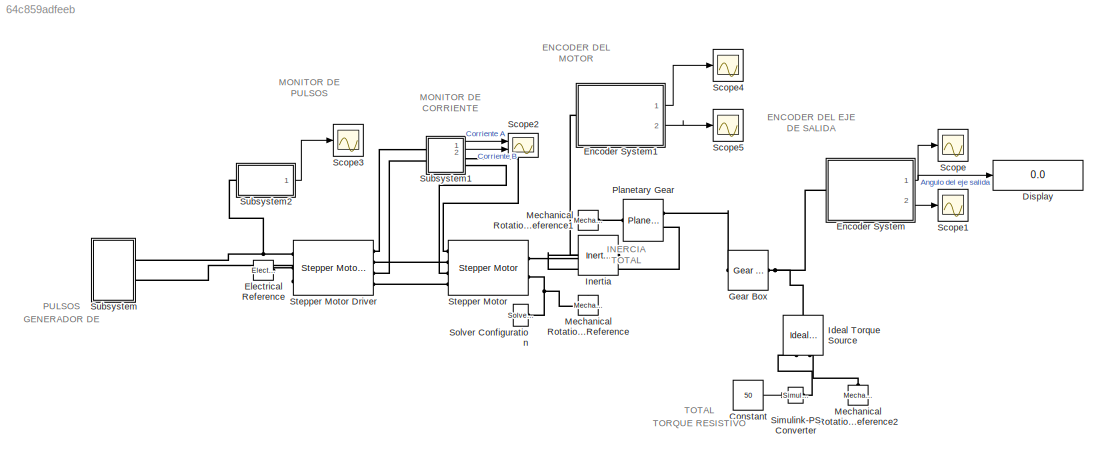
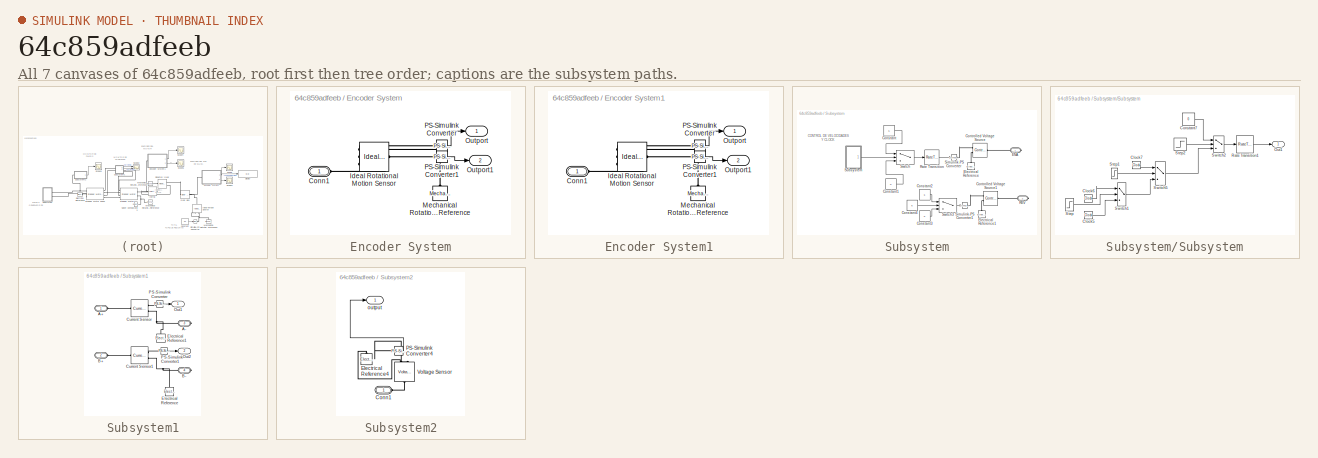
[diagram: thumbnail index - all 7 canvases of the model, root first then tree order]
MODEL slx_64c859adfeeb
KIND model
CONFIG AbsTol = auto
CONFIG EnableMultiTasking = off
CONFIG FixedStep = auto
CONFIG MaxStep = auto
CONFIG MinStep = auto
CONFIG RelTol = 1e-3
CONFIG SampleTimeConstraint = Unconstrained
CONFIG SolverName = VariableStepAuto
CONFIG StartTime = 0.0
CONFIG StopTime = 60
BLOCK [Constant] Constant
  Value = 50
BLOCK [Display] Display
  Decimation = 1
  Ports = [1]
BLOCK [Reference] Electrical Reference  REF=fl_lib/Electrical/Electrical Elements/Electrical Reference
  Ports = [0, 0, 0, 0, 0, 1]
  SourceBlock = fl_lib/Electrical/Electrical Elements/Electrical Reference
  SourceProductBaseCode = SS
  SourceType = Electrical Reference
BLOCK [SubSystem] Encoder System
  Ports = [0, 2, 0, 0, 0, 1]
  RequestExecContextInheritance = off
BLOCK [PMIOPort] Encoder System/Conn1
  Side = Left
BLOCK [Reference] Encoder System/Ideal Rotational Motion Sensor  REF=fl_lib/Mechanical/Mechanical Sensors/Ideal Rotational
Motion Sensor
  Ports = [0, 0, 0, 0, 0, 1, 3]
  SourceBlock = fl_lib/Mechanical/Mechanical Sensors/Ideal Rotational\nMotion Sensor
  SourceProductBaseCode = SS
  SourceType = Ideal Rotational\nMotion Sensor
BLOCK [Reference] Encoder System/Mechanical Rotational Reference  REF=fl_lib/Mechanical/Rotational Elements/Mechanical
Rotational Reference
  NameLocation = right
  Ports = [0, 0, 0, 0, 0, 1]
  SourceBlock = fl_lib/Mechanical/Rotational Elements/Mechanical\nRotational Reference
  SourceProductBaseCode = SS
  SourceType = Mechanical\nRotational Reference
BLOCK [Outport] Encoder System/Outport
BLOCK [Outport] Encoder System/Outport1
  Port = 2
BLOCK [Reference] Encoder System/PS-Simulink Converter  REF=nesl_utility/PS-Simulink
Converter
  Ports = [0, 1, 0, 0, 0, 1]
  SourceBlock = nesl_utility/PS-Simulink\nConverter
  SourceProductBaseCode = PW,SS
  SourceType = PS-Simulink\nConverter
BLOCK [Reference] Encoder System/PS-Simulink Converter1  REF=nesl_utility/PS-Simulink
Converter
  Ports = [0, 1, 0, 0, 0, 1]
  SourceBlock = nesl_utility/PS-Simulink\nConverter
  SourceProductBaseCode = PW,SS
  SourceType = PS-Simulink\nConverter
BLOCK [SubSystem] Encoder System1
  Ports = [0, 2, 0, 0, 0, 1]
  RequestExecContextInheritance = off
BLOCK [PMIOPort] Encoder System1/Conn1
  Side = Left
BLOCK [Reference] Encoder System1/Ideal Rotational Motion Sensor  REF=fl_lib/Mechanical/Mechanical Sensors/Ideal Rotational
Motion Sensor
  Ports = [0, 0, 0, 0, 0, 1, 3]
  SourceBlock = fl_lib/Mechanical/Mechanical Sensors/Ideal Rotational\nMotion Sensor
  SourceProductBaseCode = SS
  SourceType = Ideal Rotational\nMotion Sensor
BLOCK [Reference] Encoder System1/Mechanical Rotational Reference  REF=fl_lib/Mechanical/Rotational Elements/Mechanical
Rotational Reference
  NameLocation = right
  Ports = [0, 0, 0, 0, 0, 1]
  SourceBlock = fl_lib/Mechanical/Rotational Elements/Mechanical\nRotational Reference
  SourceProductBaseCode = SS
  SourceType = Mechanical\nRotational Reference
BLOCK [Outport] Encoder System1/Outport
BLOCK [Outport] Encoder System1/Outport1
  Port = 2
BLOCK [Reference] Encoder System1/PS-Simulink Converter  REF=nesl_utility/PS-Simulink
Converter
  Ports = [0, 1, 0, 0, 0, 1]
  SourceBlock = nesl_utility/PS-Simulink\nConverter
  SourceProductBaseCode = PW,SS
  SourceType = PS-Simulink\nConverter
BLOCK [Reference] Encoder System1/PS-Simulink Converter1  REF=nesl_utility/PS-Simulink
Converter
  Ports = [0, 1, 0, 0, 0, 1]
  SourceBlock = nesl_utility/PS-Simulink\nConverter
  SourceProductBaseCode = PW,SS
  SourceType = PS-Simulink\nConverter
BLOCK [Reference] Gear Box  REF=fl_lib/Mechanical/Mechanisms/Gear Box
  Ports = [0, 0, 0, 0, 0, 1, 1]
  SourceBlock = fl_lib/Mechanical/Mechanisms/Gear Box
  SourceProductBaseCode = SS
  SourceType = Gear Box
BLOCK [Reference] Ideal Torque Source  REF=fl_lib/Mechanical/Mechanical Sources/Ideal Torque Source
  NameLocation = right
  Ports = [0, 0, 0, 0, 0, 1, 2]
  SourceBlock = fl_lib/Mechanical/Mechanical Sources/Ideal Torque Source
  SourceProductBaseCode = SS
  SourceType = Ideal Torque Source
BLOCK [Reference] Inertia  REF=fl_lib/Mechanical/Rotational Elements/Inertia
  NameLocation = top
  Ports = [0, 0, 0, 0, 0, 1]
  SourceBlock = fl_lib/Mechanical/Rotational Elements/Inertia
  SourceProductBaseCode = SS
  SourceType = Inertia
BLOCK [Reference] Mechanical Rotational Reference  REF=fl_lib/Mechanical/Rotational Elements/Mechanical
Rotational Reference
  NameLocation = right
  Ports = [0, 0, 0, 0, 0, 1]
  SourceBlock = fl_lib/Mechanical/Rotational Elements/Mechanical\nRotational Reference
  SourceProductBaseCode = SS
  SourceType = Mechanical\nRotational Reference
BLOCK [Reference] Mechanical Rotational Reference1  REF=fl_lib/Mechanical/Rotational Elements/Mechanical
Rotational Reference
  Ports = [0, 0, 0, 0, 0, 1]
  SourceBlock = fl_lib/Mechanical/Rotational Elements/Mechanical\nRotational Reference
  SourceProductBaseCode = SS
  SourceType = Mechanical\nRotational Reference
BLOCK [Reference] Mechanical Rotational Reference2  REF=fl_lib/Mechanical/Rotational Elements/Mechanical
Rotational Reference
  NameLocation = right
  Ports = [0, 0, 0, 0, 0, 1]
  SourceBlock = fl_lib/Mechanical/Rotational Elements/Mechanical\nRotational Reference
  SourceProductBaseCode = SS
  SourceType = Mechanical\nRotational Reference
BLOCK [Reference] Planetary Gear  REF=sdl_lib/Gears/Planetary Gear
  Ports = [0, 0, 0, 0, 0, 1, 2]
  SourceBlock = sdl_lib/Gears/Planetary Gear
  SourceProductBaseCode = LD
  SourceType = Planetary Gear
BLOCK [Scope] Scope
  Floating = off
  NumInputPorts = 1
  Ports = [1]
  ScopeSpecificationString = Simulink.scopes.TimeScopeBlockCfg('CurrentConfiguration', extmgr.ConfigurationSet(extmgr.Configuration('Core','General UI',true,'FigureColor',[1 1 1]),extmgr.Configuration('Core','Source UI',true),extmgr.Configuration('Sources','WiredSimulink',true),extmgr.Configuration('Visuals','Time Domain',true,'SerializedDisplays',{struct('MinYLimReal','-1.13748','MaxYLimReal','10.97744','YLabelReal','Grados ...<+1527ch>
BLOCK [Scope] Scope1
  Floating = off
  NumInputPorts = 1
  Ports = [1]
  ScopeSpecificationString = Simulink.scopes.TimeScopeBlockCfg('CurrentConfiguration', extmgr.ConfigurationSet(extmgr.Configuration('Core','General UI',true),extmgr.Configuration('Core','Source UI',true),extmgr.Configuration('Sources','WiredSimulink',true,'DataLoggingVariableName','ScopeData1'),extmgr.Configuration('Visuals','Time Domain',true,'SerializedDisplays',{struct('MinYLimReal','-0.01553','MaxYLimReal','0.10097','YLab...<+1403ch>
BLOCK [Scope] Scope2
  Floating = off
  NumInputPorts = 2
  Ports = [2]
  ScopeSpecificationString = Simulink.scopes.TimeScopeBlockCfg('CurrentConfiguration', extmgr.ConfigurationSet(extmgr.Configuration('Core','General UI',true,'FigureColor',[1 1 1]),extmgr.Configuration('Core','Source UI',true),extmgr.Configuration('Sources','WiredSimulink',true,'DataLoggingVariableName','ScopeData2'),extmgr.Configuration('Visuals','Time Domain',true,'SerializedDisplays',{struct('MinYLimReal','-12.37288','MaxYL...<+1667ch>
BLOCK [Scope] Scope3
  Floating = off
  NumInputPorts = 1
  Ports = [1]
  ScopeSpecificationString = Simulink.scopes.TimeScopeBlockCfg('CurrentConfiguration', extmgr.ConfigurationSet(extmgr.Configuration('Core','General UI',true,'FigureColor',[1 1 1]),extmgr.Configuration('Core','Source UI',true),extmgr.Configuration('Sources','WiredSimulink',true,'DataLoggingVariableName','ScopeData3'),extmgr.Configuration('Visuals','Time Domain',true,'SerializedDisplays',{struct('MinYLimReal','-0.625','MaxYLimR...<+1527ch>
BLOCK [Scope] Scope4
  Floating = off
  NumInputPorts = 1
  Ports = [1]
  ScopeSpecificationString = Simulink.scopes.TimeScopeBlockCfg('CurrentConfiguration', extmgr.ConfigurationSet(extmgr.Configuration('Core','General UI',true),extmgr.Configuration('Core','Source UI',true),extmgr.Configuration('Sources','WiredSimulink',true,'DataLoggingVariableName','ScopeData4'),extmgr.Configuration('Visuals','Time Domain',true,'SerializedDisplays',{struct('MinYLimReal','-5.12161','MaxYLimReal','314.95989','YL...<+1458ch>
BLOCK [Scope] Scope5
  Floating = off
  NumInputPorts = 1
  Ports = [1]
  ScopeSpecificationString = Simulink.scopes.TimeScopeBlockCfg('CurrentConfiguration', extmgr.ConfigurationSet(extmgr.Configuration('Core','General UI',true),extmgr.Configuration('Core','Source UI',true),extmgr.Configuration('Sources','WiredSimulink',true,'DataLoggingVariableName','ScopeData5'),extmgr.Configuration('Visuals','Time Domain',true,'SerializedDisplays',{struct('MinYLimReal','-0.22306','MaxYLimReal','0.20911','YLab...<+1402ch>
BLOCK [Reference] Simulink-PS Converter  REF=nesl_utility/Simulink-PS
Converter
  Ports = [1, 0, 0, 0, 0, 0, 1]
  SourceBlock = nesl_utility/Simulink-PS\nConverter
  SourceProductBaseCode = PW,SS
  SourceType = Simulink-PS\nConverter
BLOCK [Reference] Solver Configuration  REF=nesl_utility/Solver
Configuration
  Ports = [0, 0, 0, 0, 0, 0, 1]
  SourceBlock = nesl_utility/Solver\nConfiguration
  SourceProductBaseCode = PW,SS
  SourceType = Solver\nConfiguration
BLOCK [Reference] Stepper Motor  REF=ee_lib/Electromechanical/Reluctance & Stepper/Stepper Motor
  Ports = [0, 0, 0, 0, 0, 4, 2]
  SourceBlock = ee_lib/Electromechanical/Reluctance & Stepper/Stepper Motor
  SourceProductBaseCode = PS
  SourceType = Stepper Motor
BLOCK [Reference] Stepper Motor Driver  REF=ee_lib/Electromechanical/Reluctance & Stepper/Stepper Motor Driver
  Ports = [0, 0, 0, 0, 0, 3, 4]
  SourceBlock = ee_lib/Electromechanical/Reluctance & Stepper/Stepper Motor Driver
  SourceProductBaseCode = PS
  SourceType = Stepper Motor Driver
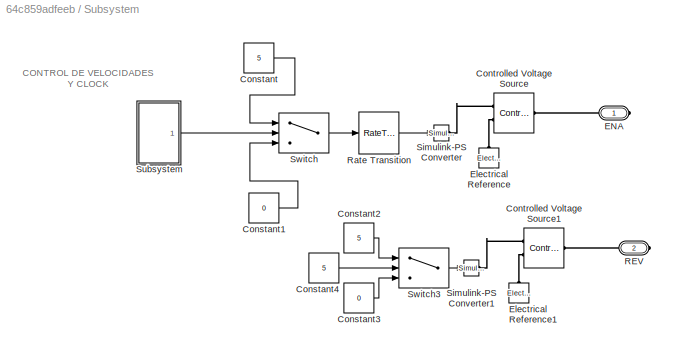
BLOCK [SubSystem] Subsystem
  Ports = [0, 0, 0, 0, 0, 0, 2]
  RequestExecContextInheritance = off
BLOCK [Constant] Subsystem/Constant
  Value = 5
BLOCK [Constant] Subsystem/Constant1
  Value = 0
BLOCK [Constant] Subsystem/Constant2
  Value = 5
BLOCK [Constant] Subsystem/Constant3
  Value = 0
BLOCK [Constant] Subsystem/Constant4
  Value = 5
BLOCK [Reference] Subsystem/Controlled Voltage Source  REF=fl_lib/Electrical/Electrical Sources/Controlled Voltage
Source
  Ports = [0, 0, 0, 0, 0, 1, 2]
  SourceBlock = fl_lib/Electrical/Electrical Sources/Controlled Voltage\nSource
  SourceProductBaseCode = SS
  SourceType = Controlled Voltage\nSource
BLOCK [Reference] Subsystem/Controlled Voltage Source1  REF=fl_lib/Electrical/Electrical Sources/Controlled Voltage
Source
  Ports = [0, 0, 0, 0, 0, 1, 2]
  SourceBlock = fl_lib/Electrical/Electrical Sources/Controlled Voltage\nSource
  SourceProductBaseCode = SS
  SourceType = Controlled Voltage\nSource
BLOCK [PMIOPort] Subsystem/ENA
  Side = Right
BLOCK [Reference] Subsystem/Electrical Reference  REF=fl_lib/Electrical/Electrical Elements/Electrical Reference
  NameLocation = right
  Ports = [0, 0, 0, 0, 0, 1]
  SourceBlock = fl_lib/Electrical/Electrical Elements/Electrical Reference
  SourceProductBaseCode = SS
  SourceType = Electrical Reference
BLOCK [Reference] Subsystem/Electrical Reference1  REF=fl_lib/Electrical/Electrical Elements/Electrical Reference
  NameLocation = right
  Ports = [0, 0, 0, 0, 0, 1]
  SourceBlock = fl_lib/Electrical/Electrical Elements/Electrical Reference
  SourceProductBaseCode = SS
  SourceType = Electrical Reference
BLOCK [PMIOPort] Subsystem/REV
  Port = 2
  Side = Right
BLOCK [RateTransition] Subsystem/Rate Transition
BLOCK [Reference] Subsystem/Simulink-PS Converter  REF=nesl_utility/Simulink-PS
Converter
  Ports = [1, 0, 0, 0, 0, 0, 1]
  SourceBlock = nesl_utility/Simulink-PS\nConverter
  SourceProductBaseCode = PW,SS
  SourceType = Simulink-PS\nConverter
BLOCK [Reference] Subsystem/Simulink-PS Converter1  REF=nesl_utility/Simulink-PS
Converter
  Ports = [1, 0, 0, 0, 0, 0, 1]
  SourceBlock = nesl_utility/Simulink-PS\nConverter
  SourceProductBaseCode = PW,SS
  SourceType = Simulink-PS\nConverter
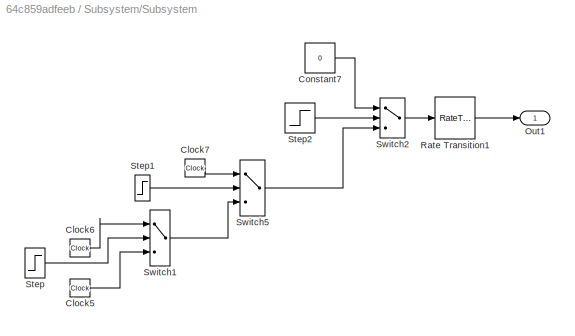
BLOCK [SubSystem] Subsystem/Subsystem
  Ports = [0, 1]
  RequestExecContextInheritance = off
BLOCK [Reference] Subsystem/Subsystem/Clock5  REF=simulink_extras/Flip Flops/Clock
  Ports = [0, 1]
  SourceBlock = simulink_extras/Flip Flops/Clock
  SourceProductBaseCode = SL
  SourceType = Digital clock
BLOCK [Reference] Subsystem/Subsystem/Clock6  REF=simulink_extras/Flip Flops/Clock
  Ports = [0, 1]
  SourceBlock = simulink_extras/Flip Flops/Clock
  SourceProductBaseCode = SL
  SourceType = Digital clock
BLOCK [Reference] Subsystem/Subsystem/Clock7  REF=simulink_extras/Flip Flops/Clock
  Ports = [0, 1]
  SourceBlock = simulink_extras/Flip Flops/Clock
  SourceProductBaseCode = SL
  SourceType = Digital clock
BLOCK [Constant] Subsystem/Subsystem/Constant7
  Value = 0
BLOCK [Outport] Subsystem/Subsystem/Out1
BLOCK [RateTransition] Subsystem/Subsystem/Rate Transition1
BLOCK [Step] Subsystem/Subsystem/Step
  SampleTime = 0
  Time = 10
BLOCK [Step] Subsystem/Subsystem/Step1
  SampleTime = 0
  Time = 30
BLOCK [Step] Subsystem/Subsystem/Step2
  SampleTime = 0
  Time = 40
BLOCK [Switch] Subsystem/Subsystem/Switch1
  Criteria = u2 > Threshold
  InputSameDT = off
  SaturateOnIntegerOverflow = off
BLOCK [Switch] Subsystem/Subsystem/Switch2
  Criteria = u2 > Threshold
  InputSameDT = off
  SaturateOnIntegerOverflow = off
BLOCK [Switch] Subsystem/Subsystem/Switch5
  Criteria = u2 > Threshold
  InputSameDT = off
  SaturateOnIntegerOverflow = off
BLOCK [Switch] Subsystem/Switch
  Criteria = u2 > Threshold
  InputSameDT = off
  SaturateOnIntegerOverflow = off
BLOCK [Switch] Subsystem/Switch3
  Criteria = u2 > Threshold
  InputSameDT = off
  SaturateOnIntegerOverflow = off
BLOCK [SubSystem] Subsystem1
  Ports = [0, 2, 0, 0, 0, 2, 2]
  RequestExecContextInheritance = off
BLOCK [PMIOPort] Subsystem1/A+
  Side = Left
BLOCK [PMIOPort] Subsystem1/A-
  Port = 3
  Side = Right
BLOCK [PMIOPort] Subsystem1/B+
  Port = 2
  Side = Left
BLOCK [PMIOPort] Subsystem1/B-
  Port = 4
  Side = Right
BLOCK [Reference] Subsystem1/Current Sensor  REF=fl_lib/Electrical/Electrical Sensors/Current Sensor
  Ports = [0, 0, 0, 0, 0, 1, 2]
  SourceBlock = fl_lib/Electrical/Electrical Sensors/Current Sensor
  SourceProductBaseCode = SS
  SourceType = Current Sensor
BLOCK [Reference] Subsystem1/Current Sensor1  REF=fl_lib/Electrical/Electrical Sensors/Current Sensor
  Ports = [0, 0, 0, 0, 0, 1, 2]
  SourceBlock = fl_lib/Electrical/Electrical Sensors/Current Sensor
  SourceProductBaseCode = SS
  SourceType = Current Sensor
BLOCK [Reference] Subsystem1/Electrical Reference  REF=fl_lib/Electrical/Electrical Elements/Electrical Reference
  NameLocation = right
  Ports = [0, 0, 0, 0, 0, 1]
  SourceBlock = fl_lib/Electrical/Electrical Elements/Electrical Reference
  SourceProductBaseCode = SS
  SourceType = Electrical Reference
BLOCK [Reference] Subsystem1/Electrical Reference1  REF=fl_lib/Electrical/Electrical Elements/Electrical Reference
  NameLocation = right
  Ports = [0, 0, 0, 0, 0, 1]
  SourceBlock = fl_lib/Electrical/Electrical Elements/Electrical Reference
  SourceProductBaseCode = SS
  SourceType = Electrical Reference
BLOCK [Outport] Subsystem1/Out1
BLOCK [Outport] Subsystem1/Out2
  Port = 2
BLOCK [Reference] Subsystem1/PS-Simulink Converter  REF=nesl_utility/PS-Simulink
Converter
  Ports = [0, 1, 0, 0, 0, 1]
  SourceBlock = nesl_utility/PS-Simulink\nConverter
  SourceProductBaseCode = PW,SS
  SourceType = PS-Simulink\nConverter
BLOCK [Reference] Subsystem1/PS-Simulink Converter1  REF=nesl_utility/PS-Simulink
Converter
  Ports = [0, 1, 0, 0, 0, 1]
  SourceBlock = nesl_utility/PS-Simulink\nConverter
  SourceProductBaseCode = PW,SS
  SourceType = PS-Simulink\nConverter
BLOCK [SubSystem] Subsystem2
  Ports = [0, 1, 0, 0, 0, 1]
  RequestExecContextInheritance = off
BLOCK [PMIOPort] Subsystem2/Conn1
  Side = Left
BLOCK [Reference] Subsystem2/Electrical Reference4  REF=fl_lib/Electrical/Electrical Elements/Electrical Reference
  NameLocation = right
  Ports = [0, 0, 0, 0, 0, 1]
  SourceBlock = fl_lib/Electrical/Electrical Elements/Electrical Reference
  SourceProductBaseCode = SS
  SourceType = Electrical Reference
BLOCK [Reference] Subsystem2/PS-Simulink Converter4  REF=nesl_utility/PS-Simulink
Converter
  Ports = [0, 1, 0, 0, 0, 1]
  SourceBlock = nesl_utility/PS-Simulink\nConverter
  SourceProductBaseCode = PW,SS
  SourceType = PS-Simulink\nConverter
BLOCK [Reference] Subsystem2/Voltage Sensor  REF=fl_lib/Electrical/Electrical Sensors/Voltage Sensor
  NameLocation = left
  Ports = [0, 0, 0, 0, 0, 1, 2]
  SourceBlock = fl_lib/Electrical/Electrical Sensors/Voltage Sensor
  SourceProductBaseCode = SS
  SourceType = Voltage Sensor
BLOCK [Outport] Subsystem2/output
ANNOTATION (root): ENCODER DEL EJE DE SALIDA
ANNOTATION (root): ENCODER DEL MOTOR
ANNOTATION (root): GENERADOR DE PULSOS
ANNOTATION (root): INERCIA TOTAL
ANNOTATION (root): MONITOR DE PULSOS
ANNOTATION (root): MONITOR DE CORRIENTE
ANNOTATION (root): TORQUE RESISTIVO TOTAL
ANNOTATION Subsystem: CONTROL DE VELOCIDADES Y CLOCK
LINE Constant:1 -> Simulink-PS Converter:1
LINE Encoder System/PS-Simulink Converter1:1 -> Encoder System/Outport1:1
LINE Encoder System/PS-Simulink Converter:1 -> Encoder System/Outport:1
LINE Encoder System1/PS-Simulink Converter1:1 -> Encoder System1/Outport1:1
LINE Encoder System1/PS-Simulink Converter:1 -> Encoder System1/Outport:1
LINE Encoder System1:1 -> Scope4:1
LINE Encoder System1:2 -> Scope5:1
NET Encoder System:1 -> Display:1, Scope:1
LINE Encoder System:2 -> Scope1:1
LINE Subsystem/Constant1:1 -> Subsystem/Switch:3
LINE Subsystem/Constant2:1 -> Subsystem/Switch3:1
LINE Subsystem/Constant3:1 -> Subsystem/Switch3:3
LINE Subsystem/Constant4:1 -> Subsystem/Switch3:2
LINE Subsystem/Constant:1 -> Subsystem/Switch:1
LINE Subsystem/Rate Transition:1 -> Subsystem/Simulink-PS Converter:1
LINE Subsystem/Subsystem/Clock5:1 -> Subsystem/Subsystem/Switch1:3
LINE Subsystem/Subsystem/Clock6:1 -> Subsystem/Subsystem/Switch1:1
LINE Subsystem/Subsystem/Clock7:1 -> Subsystem/Subsystem/Switch5:1
LINE Subsystem/Subsystem/Constant7:1 -> Subsystem/Subsystem/Switch2:1
LINE Subsystem/Subsystem/Rate Transition1:1 -> Subsystem/Subsystem/Out1:1
LINE Subsystem/Subsystem/Step1:1 -> Subsystem/Subsystem/Switch5:2
LINE Subsystem/Subsystem/Step2:1 -> Subsystem/Subsystem/Switch2:2
LINE Subsystem/Subsystem/Step:1 -> Subsystem/Subsystem/Switch1:2
LINE Subsystem/Subsystem/Switch1:1 -> Subsystem/Subsystem/Switch5:3
LINE Subsystem/Subsystem/Switch2:1 -> Subsystem/Subsystem/Rate Transition1:1
LINE Subsystem/Subsystem/Switch5:1 -> Subsystem/Subsystem/Switch2:3
LINE Subsystem/Subsystem:1 -> Subsystem/Switch:2
LINE Subsystem/Switch3:1 -> Subsystem/Simulink-PS Converter1:1
LINE Subsystem/Switch:1 -> Subsystem/Rate Transition:1
LINE Subsystem1/PS-Simulink Converter1:1 -> Subsystem1/Out2:1
LINE Subsystem1/PS-Simulink Converter:1 -> Subsystem1/Out1:1
LINE Subsystem1:1 -> Scope2:1
LINE Subsystem1:2 -> Scope2:2
LINE Subsystem2/PS-Simulink Converter4:1 -> Subsystem2/output:1
LINE Subsystem2:1 -> Scope3:1
PLINE Electrical Reference:LConn1 -- Stepper Motor Driver:LConn2
PLINE Encoder System/Conn1:RConn1 -- Encoder System/Ideal Rotational Motion Sensor:LConn1
PLINE Encoder System/Ideal Rotational Motion Sensor:RConn1 -- Encoder System/Mechanical Rotational Reference:LConn1
PLINE Encoder System/Ideal Rotational Motion Sensor:RConn2 -- Encoder System/PS-Simulink Converter1:LConn1
PLINE Encoder System/Ideal Rotational Motion Sensor:RConn3 -- Encoder System/PS-Simulink Converter:LConn1
PLINE Encoder System1/Conn1:RConn1 -- Encoder System1/Ideal Rotational Motion Sensor:LConn1
PLINE Encoder System1/Ideal Rotational Motion Sensor:RConn1 -- Encoder System1/Mechanical Rotational Reference:LConn1
PLINE Encoder System1/Ideal Rotational Motion Sensor:RConn2 -- Encoder System1/PS-Simulink Converter1:LConn1
PLINE Encoder System1/Ideal Rotational Motion Sensor:RConn3 -- Encoder System1/PS-Simulink Converter:LConn1
PNET net1: Encoder System1:LConn1 -- Inertia:LConn1 -- Planetary Gear:RConn2 -- Stepper Motor:RConn1
PNET net2: Encoder System:LConn1 -- Gear Box:RConn1 -- Ideal Torque Source:LConn1
PLINE Gear Box:LConn1 -- Planetary Gear:RConn1
PLINE Ideal Torque Source:RConn1 -- Simulink-PS Converter:RConn1
PLINE Ideal Torque Source:RConn2 -- Mechanical Rotational Reference2:LConn1
PLINE Mechanical Rotational Reference1:LConn1 -- Planetary Gear:LConn1
PNET net3: Mechanical Rotational Reference:LConn1 -- Solver Configuration:RConn1 -- Stepper Motor:RConn2
PNET net4: Stepper Motor Driver:LConn1 -- Subsystem2:LConn1 -- Subsystem:RConn1
PLINE Stepper Motor Driver:LConn3 -- Subsystem:RConn2
PLINE Stepper Motor Driver:RConn1 -- Subsystem1:LConn1
PLINE Stepper Motor Driver:RConn2 -- Stepper Motor:LConn2
PLINE Stepper Motor Driver:RConn3 -- Subsystem1:LConn2
PLINE Stepper Motor Driver:RConn4 -- Stepper Motor:LConn4
PLINE Stepper Motor:LConn1 -- Subsystem1:RConn1
PLINE Stepper Motor:LConn3 -- Subsystem1:RConn2
PLINE Subsystem/Controlled Voltage Source1:LConn1 -- Subsystem/REV:RConn1
PLINE Subsystem/Controlled Voltage Source1:RConn1 -- Subsystem/Simulink-PS Converter1:RConn1
PLINE Subsystem/Controlled Voltage Source1:RConn2 -- Subsystem/Electrical Reference1:LConn1
PLINE Subsystem/Controlled Voltage Source:LConn1 -- Subsystem/ENA:RConn1
PLINE Subsystem/Controlled Voltage Source:RConn1 -- Subsystem/Simulink-PS Converter:RConn1
PLINE Subsystem/Controlled Voltage Source:RConn2 -- Subsystem/Electrical Reference:LConn1
PLINE Subsystem1/A+:RConn1 -- Subsystem1/Current Sensor:LConn1
PNET net5: Subsystem1/A-:RConn1 -- Subsystem1/Current Sensor:RConn2 -- Subsystem1/Electrical Reference1:LConn1
PLINE Subsystem1/B+:RConn1 -- Subsystem1/Current Sensor1:LConn1
PNET net6: Subsystem1/B-:RConn1 -- Subsystem1/Current Sensor1:RConn2 -- Subsystem1/Electrical Reference:LConn1
PLINE Subsystem1/Current Sensor1:RConn1 -- Subsystem1/PS-Simulink Converter1:LConn1
PLINE Subsystem1/Current Sensor:RConn1 -- Subsystem1/PS-Simulink Converter:LConn1
PLINE Subsystem2/Conn1:RConn1 -- Subsystem2/Voltage Sensor:LConn1
PLINE Subsystem2/Electrical Reference4:LConn1 -- Subsystem2/Voltage Sensor:RConn2
PLINE Subsystem2/PS-Simulink Converter4:LConn1 -- Subsystem2/Voltage Sensor:RConn1
note: NET lines group one-source signal fan-out (src -> all destinations, sorted); 1:1 wires keep LINE; PNET lines group multi-terminal physical nets as a canonical sorted terminal list (undirected conserving connections); 2-terminal nets keep the pairwise PLINE form
